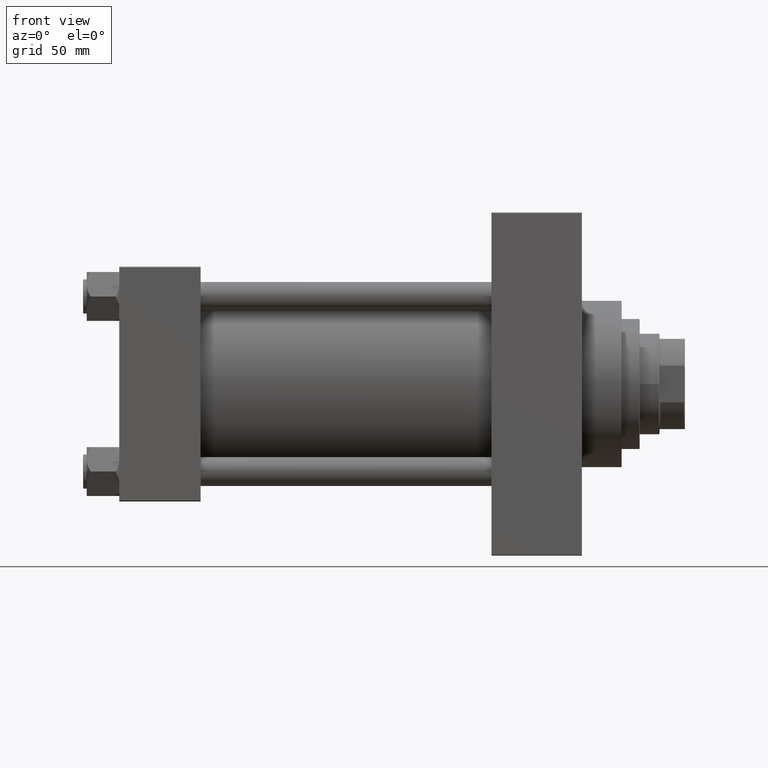
[diagram: clean part render]
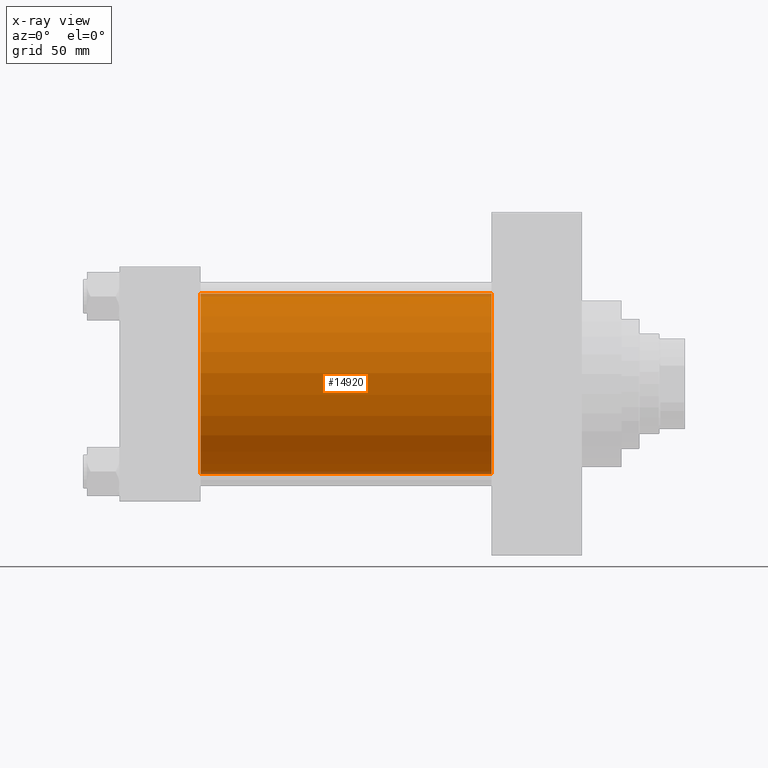
[diagram: x-ray — body ghosted, one internal face saturated and labeled with its STEP entity id]
A machine part, front view, then the same camera in x-ray: the body is ghosted and one INTERNAL B-rep face — a face not visible from any outside direction — is saturated and labeled: STEP entity #14920.
In plain terms, the highlighted cylindrical surface (partial cylindrical patch) has radius 50 mm, axis along (-1, -0, -0).
Its self-contained STEP definition (entity closure, byte-faithful):
#921 = AXIS2_PLACEMENT_3D ( 'NONE', #1778, #5178, #38697 ) ;
#1733 = VERTEX_POINT ( 'NONE', #30861 ) ;
#1773 = VERTEX_POINT ( 'NONE', #12285 ) ;
#1778 = CARTESIAN_POINT ( 'NONE',  ( 45.00000000000000000, -2.602085213965210642E-15, 0.000000000000000000 ) ) ;
#1904 = LINE ( 'NONE', #16155, #43676 ) ;
#3570 = EDGE_CURVE ( 'NONE', #1773, #1733, #31753, .T. ) ;
#4874 = CARTESIAN_POINT ( 'NONE',  ( 206.0000000000000284, -2.602085213965210642E-15, 0.000000000000000000 ) ) ;
#5178 = DIRECTION ( 'NONE',  ( 1.000000000000000000, 0.000000000000000000, 0.000000000000000000 ) ) ;
#5556 = LINE ( 'NONE', #30909, #30068 ) ;
#8959 = DIRECTION ( 'NONE',  ( 0.000000000000000000, 0.000000000000000000, 1.000000000000000000 ) ) ;
#9399 = ORIENTED_EDGE ( 'NONE', *, *, #32044, .F. ) ;
#11886 = DIRECTION ( 'NONE',  ( 0.000000000000000000, 0.000000000000000000, -1.000000000000000000 ) ) ;
#12285 = CARTESIAN_POINT ( 'NONE',  ( 45.00000000000000000, -2.602085213965210642E-15, 50.00000000000000000 ) ) ;
#14920 = ADVANCED_FACE ( 'NONE', ( #45901 ), #27766, .F. ) ;
#16155 = CARTESIAN_POINT ( 'NONE',  ( 206.0000000000000284, -2.602085213965210642E-15, 50.00000000000000000 ) ) ;
#19021 = AXIS2_PLACEMENT_3D ( 'NONE', #37699, #23219, #11886 ) ;
#19700 = VERTEX_POINT ( 'NONE', #26602 ) ;
#20392 = EDGE_LOOP ( 'NONE', ( #33873, #34995, #23801, #9399 ) ) ;
#23219 = DIRECTION ( 'NONE',  ( 1.000000000000000000, 0.000000000000000000, 0.000000000000000000 ) ) ;
#23801 = ORIENTED_EDGE ( 'NONE', *, *, #3570, .F. ) ;
#24453 = VERTEX_POINT ( 'NONE', #45845 ) ;
#26602 = CARTESIAN_POINT ( 'NONE',  ( 206.0000000000000284, 3.521148781771555838E-15, -50.00000000000000000 ) ) ;
#27766 = CYLINDRICAL_SURFACE ( 'NONE', #31956, 50.00000000000000000 ) ;
#30068 = VECTOR ( 'NONE', #45651, 1000.000000000000000 ) ;
#30559 = CIRCLE ( 'NONE', #19021, 50.00000000000000000 ) ;
#30861 = CARTESIAN_POINT ( 'NONE',  ( 45.00000000000000000, 3.521148781771555838E-15, -50.00000000000000000 ) ) ;
#30909 = CARTESIAN_POINT ( 'NONE',  ( 206.0000000000000284, 3.521148781771555838E-15, -50.00000000000000000 ) ) ;
#31635 = EDGE_CURVE ( 'NONE', #24453, #19700, #30559, .T. ) ;
#31753 = CIRCLE ( 'NONE', #921, 50.00000000000000000 ) ;
#31956 = AXIS2_PLACEMENT_3D ( 'NONE', #4874, #34541, #8959 ) ;
#32044 = EDGE_CURVE ( 'NONE', #24453, #1773, #1904, .T. ) ;
#33873 = ORIENTED_EDGE ( 'NONE', *, *, #31635, .T. ) ;
#34541 = DIRECTION ( 'NONE',  ( -1.000000000000000000, -0.000000000000000000, -0.000000000000000000 ) ) ;
#34995 = ORIENTED_EDGE ( 'NONE', *, *, #44302, .T. ) ;
#37699 = CARTESIAN_POINT ( 'NONE',  ( 206.0000000000000284, -2.602085213965210642E-15, 0.000000000000000000 ) ) ;
#38697 = DIRECTION ( 'NONE',  ( 0.000000000000000000, 0.000000000000000000, -1.000000000000000000 ) ) ;
#41997 = DIRECTION ( 'NONE',  ( -1.000000000000000000, -0.000000000000000000, -0.000000000000000000 ) ) ;
#43676 = VECTOR ( 'NONE', #41997, 1000.000000000000000 ) ;
#44302 = EDGE_CURVE ( 'NONE', #19700, #1733, #5556, .T. ) ;
#45651 = DIRECTION ( 'NONE',  ( -1.000000000000000000, -0.000000000000000000, -0.000000000000000000 ) ) ;
#45845 = CARTESIAN_POINT ( 'NONE',  ( 206.0000000000000284, -2.602085213965210642E-15, 50.00000000000000000 ) ) ;
#45901 = FACE_OUTER_BOUND ( 'NONE', #20392, .T. ) ;